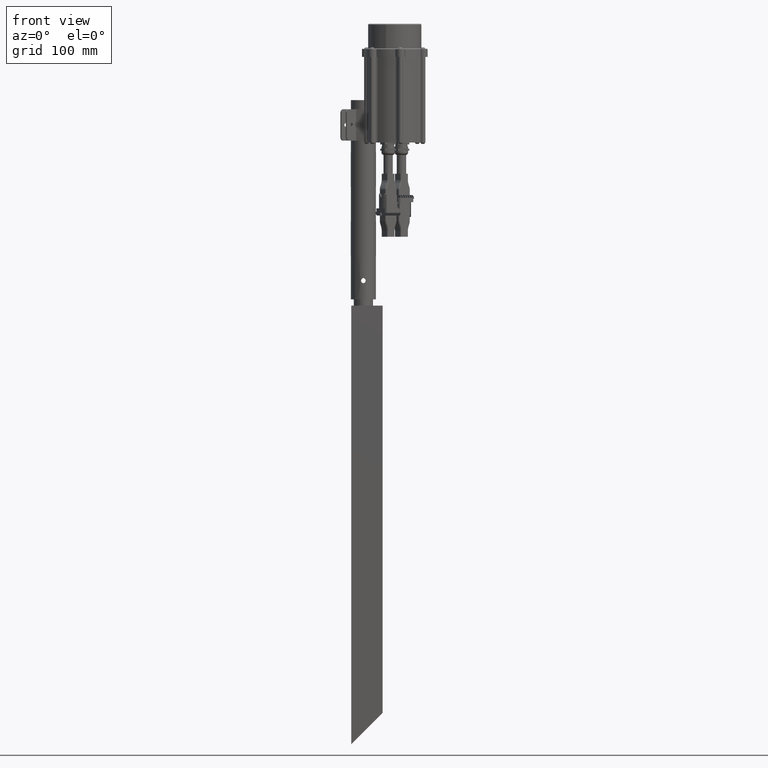
[diagram: clean part render]
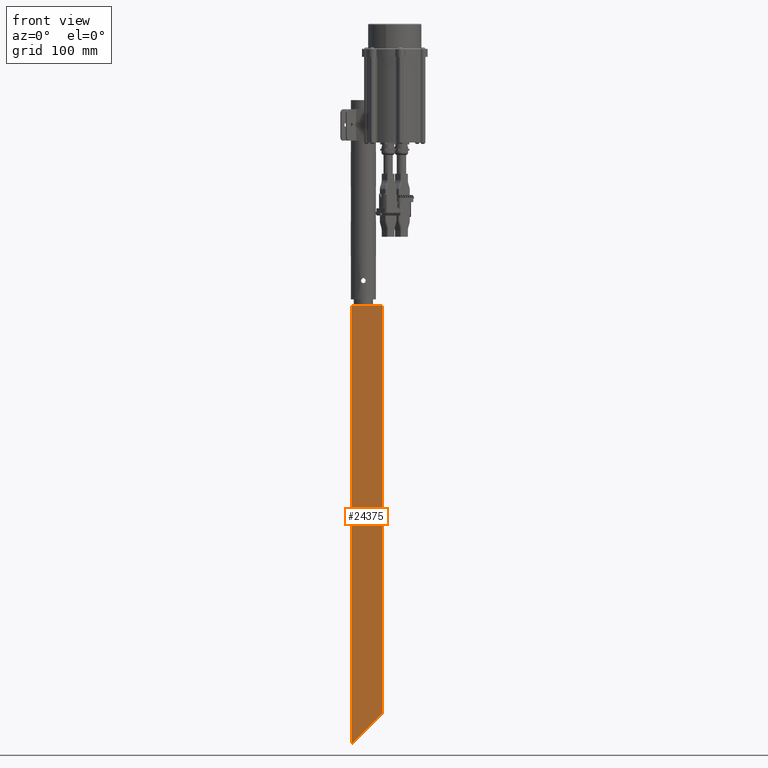
[diagram: same view with one face highlighted and labeled with its STEP entity id]
A machine part, front view. The second image highlights one B-rep face of the part: STEP entity #24375.
In plain terms, the highlighted planar face has unit normal (0, 1, 0).
Its self-contained STEP definition (entity closure, byte-faithful):
#582 = ORIENTED_EDGE ( 'NONE', *, *, #24961, .F. ) ;
#701 = VECTOR ( 'NONE', #34683, 1000.000000000000000 ) ;
#3490 = CARTESIAN_POINT ( 'NONE',  ( 50.00000000000000700, 0.0000000000000000000, 50.00000000000000000 ) ) ;
#3494 = EDGE_CURVE ( 'NONE', #36151, #6990, #13931, .T. ) ;
#4300 = ORIENTED_EDGE ( 'NONE', *, *, #3494, .F. ) ;
#4659 = VERTEX_POINT ( 'NONE', #9671 ) ;
#5641 = CARTESIAN_POINT ( 'NONE',  ( 0.0000000000000000000, 0.0000000000000000000, 0.0000000000000000000 ) ) ;
#6022 = CARTESIAN_POINT ( 'NONE',  ( 50.00000000000000000, 0.0000000000000000000, 700.0000000000000000 ) ) ;
#6297 = DIRECTION ( 'NONE',  ( 1.000000000000000000, 0.0000000000000000000, 0.0000000000000000000 ) ) ;
#6458 = DIRECTION ( 'NONE',  ( 0.0000000000000000000, 1.000000000000000000, 0.0000000000000000000 ) ) ;
#6990 = VERTEX_POINT ( 'NONE', #3490 ) ;
#7799 = CARTESIAN_POINT ( 'NONE',  ( 0.0000000000000000000, 0.0000000000000000000, 700.0000000000000000 ) ) ;
#8142 = EDGE_LOOP ( 'NONE', ( #19436, #4300, #582, #12271 ) ) ;
#9332 = LINE ( 'NONE', #15150, #32767 ) ;
#9671 = CARTESIAN_POINT ( 'NONE',  ( 0.0000000000000000000, 0.0000000000000000000, 0.0000000000000000000 ) ) ;
#11140 = CARTESIAN_POINT ( 'NONE',  ( 0.0000000000000000000, 0.0000000000000000000, 700.0000000000000000 ) ) ;
#12271 = ORIENTED_EDGE ( 'NONE', *, *, #17139, .T. ) ;
#13931 = LINE ( 'NONE', #6022, #20837 ) ;
#14513 = DIRECTION ( 'NONE',  ( 0.7071067811865474600, 0.0000000000000000000, 0.7071067811865474600 ) ) ;
#15150 = CARTESIAN_POINT ( 'NONE',  ( 0.0000000000000000000, 0.0000000000000000000, 700.0000000000000000 ) ) ;
#17068 = VERTEX_POINT ( 'NONE', #7799 ) ;
#17139 = EDGE_CURVE ( 'NONE', #17068, #4659, #22372, .T. ) ;
#18140 = PLANE ( 'NONE',  #20520 ) ;
#19436 = ORIENTED_EDGE ( 'NONE', *, *, #27937, .T. ) ;
#20520 = AXIS2_PLACEMENT_3D ( 'NONE', #24036, #6458, #27035 ) ;
#20837 = VECTOR ( 'NONE', #29526, 1000.000000000000000 ) ;
#21114 = VECTOR ( 'NONE', #14513, 1000.000000000000100 ) ;
#22372 = LINE ( 'NONE', #11140, #701 ) ;
#24036 = CARTESIAN_POINT ( 'NONE',  ( 0.0000000000000000000, 0.0000000000000000000, 700.0000000000000000 ) ) ;
#24375 = ADVANCED_FACE ( 'NONE', ( #34689 ), #18140, .F. ) ;
#24961 = EDGE_CURVE ( 'NONE', #17068, #36151, #9332, .T. ) ;
#27035 = DIRECTION ( 'NONE',  ( 0.0000000000000000000, -0.0000000000000000000, 1.000000000000000000 ) ) ;
#27641 = CARTESIAN_POINT ( 'NONE',  ( 50.00000000000000000, 0.0000000000000000000, 700.0000000000000000 ) ) ;
#27937 = EDGE_CURVE ( 'NONE', #4659, #6990, #28947, .T. ) ;
#28947 = LINE ( 'NONE', #5641, #21114 ) ;
#29526 = DIRECTION ( 'NONE',  ( -0.0000000000000000000, -0.0000000000000000000, -1.000000000000000000 ) ) ;
#32767 = VECTOR ( 'NONE', #6297, 1000.000000000000000 ) ;
#34683 = DIRECTION ( 'NONE',  ( -0.0000000000000000000, -0.0000000000000000000, -1.000000000000000000 ) ) ;
#34689 = FACE_OUTER_BOUND ( 'NONE', #8142, .T. ) ;
#36151 = VERTEX_POINT ( 'NONE', #27641 ) ;